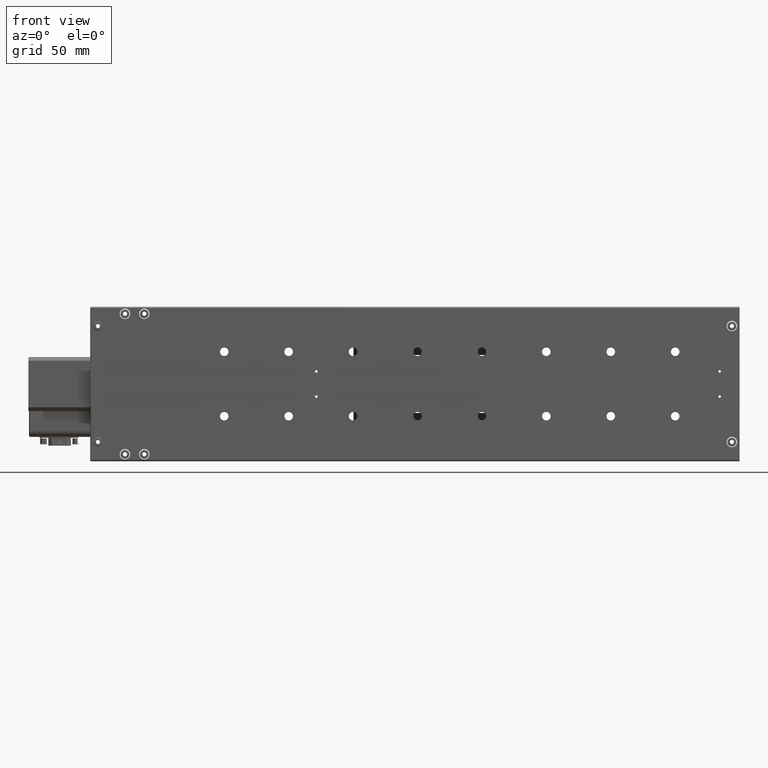
[diagram: clean part render]
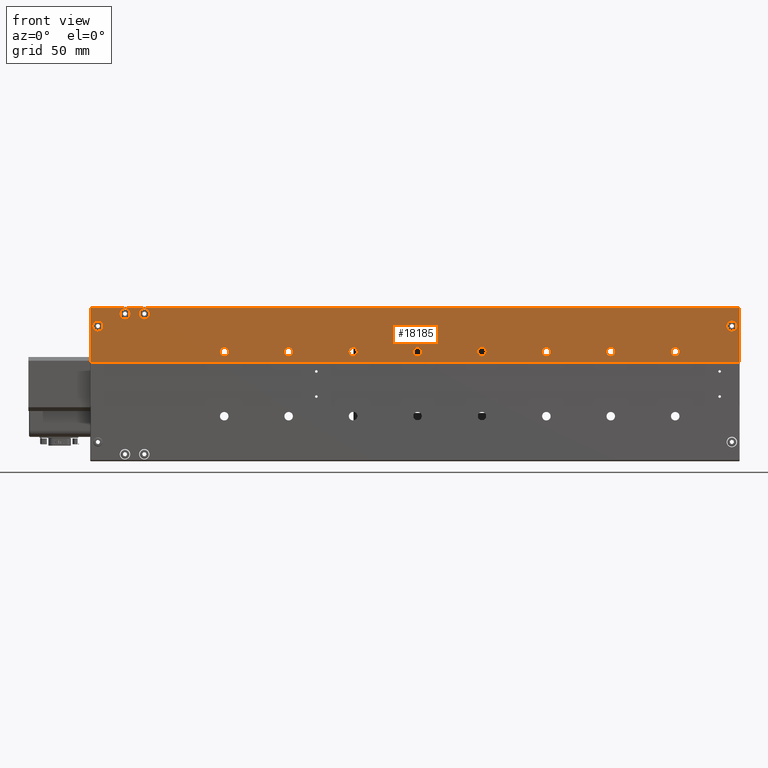
[diagram: same view with one face highlighted and labeled with its STEP entity id]
A machine part, front view. The second image highlights one B-rep face of the part: STEP entity #18185.
In plain terms, the highlighted planar face has unit normal (-0, 1, -0).
Its self-contained STEP definition (entity closure, byte-faithful):
#147 = AXIS2_PLACEMENT_3D ( 'NONE', #32974, #39916, #19554 ) ;
#389 = DIRECTION ( 'NONE',  ( -1.751623080406021300E-046, 1.000000000000000000, -1.224646799147353200E-016 ) ) ;
#541 = DIRECTION ( 'NONE',  ( -1.000000000000000000, -1.283953296258158300E-030, -1.682156097916905300E-014 ) ) ;
#644 = VERTEX_POINT ( 'NONE', #18623 ) ;
#680 = CARTESIAN_POINT ( 'NONE',  ( -26.91805639493426100, -1.734723475976811200E-015, 282.9914224104954900 ) ) ;
#935 = ORIENTED_EDGE ( 'NONE', *, *, #31258, .T. ) ;
#1015 = DIRECTION ( 'NONE',  ( -1.000000000000000000, -1.283953296258163800E-030, -1.682156097916912200E-014 ) ) ;
#1148 = ORIENTED_EDGE ( 'NONE', *, *, #7535, .T. ) ;
#1414 = EDGE_CURVE ( 'NONE', #25309, #15372, #10296, .T. ) ;
#1450 = DIRECTION ( 'NONE',  ( 1.000000000000000000, 1.274654131356476300E-030, 1.387778780781444400E-014 ) ) ;
#1548 = ORIENTED_EDGE ( 'NONE', *, *, #29086, .T. ) ;
#1903 = EDGE_CURVE ( 'NONE', #27687, #29954, #9814, .T. ) ;
#1985 = VERTEX_POINT ( 'NONE', #12479 ) ;
#2250 = DIRECTION ( 'NONE',  ( 1.040834085586084100E-014, -1.224646799147353200E-016, -1.000000000000000000 ) ) ;
#2649 = CARTESIAN_POINT ( 'NONE',  ( -375.6180563949345100, -1.734723475976814000E-015, 302.9914224104917400 ) ) ;
#2694 = CIRCLE ( 'NONE', #15061, 3.299999999999983400 ) ;
#2706 = CIRCLE ( 'NONE', #15436, 3.299999999999997200 ) ;
#2717 = CARTESIAN_POINT ( 'NONE',  ( -335.6180563949346300, 0.0000000000000000000, 312.4914224104921900 ) ) ;
#3256 = DIRECTION ( 'NONE',  ( 1.000000000000000000, 1.251854463851702300E-030, 1.387778780781444400E-014 ) ) ;
#3314 = FACE_BOUND ( 'NONE', #26994, .T. ) ;
#3502 = EDGE_LOOP ( 'NONE', ( #18482, #17681 ) ) ;
#4272 = AXIS2_PLACEMENT_3D ( 'NONE', #30868, #389, #541 ) ;
#4411 = CARTESIAN_POINT ( 'NONE',  ( 124.3819436050654200, -1.734723475976802200E-015, 302.9914224104970200 ) ) ;
#4429 = DIRECTION ( 'NONE',  ( 1.751623080406021300E-046, -1.000000000000000000, 1.224646799147353200E-016 ) ) ;
#4842 = AXIS2_PLACEMENT_3D ( 'NONE', #27214, #43859, #40288 ) ;
#4894 = FACE_BOUND ( 'NONE', #15428, .T. ) ;
#5319 = DIRECTION ( 'NONE',  ( -1.000000000000000000, -1.283953296258158300E-030, -1.682156097916905300E-014 ) ) ;
#5396 = DIRECTION ( 'NONE',  ( 1.000000000000000000, 1.274654131356476300E-030, 1.387778780781444400E-014 ) ) ;
#5621 = EDGE_LOOP ( 'NONE', ( #13675, #18938 ) ) ;
#5740 = CARTESIAN_POINT ( 'NONE',  ( -270.3180563949343300, -1.734723475976800400E-015, 282.9914224104929900 ) ) ;
#5847 = VERTEX_POINT ( 'NONE', #7627 ) ;
#6016 = ORIENTED_EDGE ( 'NONE', *, *, #22105, .F. ) ;
#6311 = ORIENTED_EDGE ( 'NONE', *, *, #14202, .T. ) ;
#6635 = EDGE_CURVE ( 'NONE', #27687, #40861, #31367, .T. ) ;
#6723 = AXIS2_PLACEMENT_3D ( 'NONE', #36448, #9503, #19616 ) ;
#6790 = AXIS2_PLACEMENT_3D ( 'NONE', #16353, #33883, #43968 ) ;
#6850 = ORIENTED_EDGE ( 'NONE', *, *, #30434, .F. ) ;
#6859 = DIRECTION ( 'NONE',  ( -1.751623080406021300E-046, 1.000000000000000000, -1.224646799147353200E-016 ) ) ;
#7305 = CARTESIAN_POINT ( 'NONE',  ( -273.6180563949342900, -1.734723475976807100E-015, 282.9914224104929300 ) ) ;
#7376 = CARTESIAN_POINT ( 'NONE',  ( -126.9180563949342500, -1.734723475976811200E-015, 282.9914224104944100 ) ) ;
#7425 = EDGE_CURVE ( 'NONE', #41999, #7772, #2706, .T. ) ;
#7535 = EDGE_CURVE ( 'NONE', #39178, #18533, #34995, .T. ) ;
#7627 = CARTESIAN_POINT ( 'NONE',  ( -276.9180563949343000, -1.734723475976811200E-015, 282.9914224104928700 ) ) ;
#7772 = VERTEX_POINT ( 'NONE', #17785 ) ;
#7839 = DIRECTION ( 'NONE',  ( -1.751623080406021300E-046, 1.000000000000000000, -1.224646799147353200E-016 ) ) ;
#7867 = DIRECTION ( 'NONE',  ( -1.000000000000000000, -1.274654131356476300E-030, -1.040834085586084100E-014 ) ) ;
#8153 = PLANE ( 'NONE',  #34807 ) ;
#8488 = ORIENTED_EDGE ( 'NONE', *, *, #1903, .T. ) ;
#8598 = DIRECTION ( 'NONE',  ( -1.751623080406021300E-046, 1.000000000000000000, -1.224646799147353200E-016 ) ) ;
#8725 = AXIS2_PLACEMENT_3D ( 'NONE', #27480, #40710, #3256 ) ;
#8937 = CARTESIAN_POINT ( 'NONE',  ( -377.1180563949346800, 0.0000000000000000000, 317.9914224104918500 ) ) ;
#9503 = DIRECTION ( 'NONE',  ( -1.751623080406021300E-046, 1.000000000000000000, -1.224646799147353200E-016 ) ) ;
#9597 = ORIENTED_EDGE ( 'NONE', *, *, #32944, .T. ) ;
#9668 = DIRECTION ( 'NONE',  ( -1.000000000000000000, -1.283953296258163800E-030, -1.682156097916912200E-014 ) ) ;
#9734 = CIRCLE ( 'NONE', #36054, 3.299999999999997200 ) ;
#9814 = LINE ( 'NONE', #36214, #42678 ) ;
#10296 = CIRCLE ( 'NONE', #15729, 3.299999999999997200 ) ;
#10313 = CIRCLE ( 'NONE', #36880, 3.299999999999997200 ) ;
#10714 = FACE_BOUND ( 'NONE', #43109, .T. ) ;
#10749 = VERTEX_POINT ( 'NONE', #28694 ) ;
#10868 = EDGE_LOOP ( 'NONE', ( #22596, #8488, #935, #14149 ) ) ;
#10920 = EDGE_CURVE ( 'NONE', #12768, #38551, #21985, .T. ) ;
#11000 = VERTEX_POINT ( 'NONE', #13439 ) ;
#11120 = CARTESIAN_POINT ( 'NONE',  ( 126.3819436050653900, 0.0000000000000000000, 317.9914224104970200 ) ) ;
#11196 = VERTEX_POINT ( 'NONE', #19522 ) ;
#11299 = ORIENTED_EDGE ( 'NONE', *, *, #7425, .T. ) ;
#11836 = ORIENTED_EDGE ( 'NONE', *, *, #31040, .T. ) ;
#12170 = CARTESIAN_POINT ( 'NONE',  ( -371.6180563949345100, -1.734723475976807100E-015, 302.9914224104917900 ) ) ;
#12449 = CARTESIAN_POINT ( 'NONE',  ( -23.61805639493426400, -1.734723475976807100E-015, 282.9914224104955500 ) ) ;
#12479 = CARTESIAN_POINT ( 'NONE',  ( -339.6180563949346300, -6.798155367234455500E-030, 312.4914224104921300 ) ) ;
#12516 = EDGE_CURVE ( 'NONE', #41302, #11000, #9734, .T. ) ;
#12627 = DIRECTION ( 'NONE',  ( 1.751623080406021300E-046, -1.000000000000000000, 1.224646799147353200E-016 ) ) ;
#12768 = VERTEX_POINT ( 'NONE', #4411 ) ;
#13115 = VERTEX_POINT ( 'NONE', #28237 ) ;
#13439 = CARTESIAN_POINT ( 'NONE',  ( -226.9180563949343000, -1.734723475976811200E-015, 282.9914224104933300 ) ) ;
#13528 = CARTESIAN_POINT ( 'NONE',  ( -377.6180563949342300, -5.204170427930421300E-015, 274.9914224104917900 ) ) ;
#13631 = CARTESIAN_POINT ( 'NONE',  ( -273.6180563949342900, -1.734723475976807100E-015, 282.9914224104929300 ) ) ;
#13675 = ORIENTED_EDGE ( 'NONE', *, *, #10920, .F. ) ;
#13874 = FACE_BOUND ( 'NONE', #26080, .T. ) ;
#13889 = VERTEX_POINT ( 'NONE', #42220 ) ;
#14094 = DIRECTION ( 'NONE',  ( -1.000000000000000000, -1.283953296258169000E-030, -1.682156097916919500E-014 ) ) ;
#14149 = ORIENTED_EDGE ( 'NONE', *, *, #17647, .T. ) ;
#14202 = EDGE_CURVE ( 'NONE', #27635, #13115, #2694, .T. ) ;
#14923 = DIRECTION ( 'NONE',  ( -1.000000000000000000, -1.283953296258158300E-030, -1.682156097916905300E-014 ) ) ;
#15061 = AXIS2_PLACEMENT_3D ( 'NONE', #41895, #7839, #1015 ) ;
#15372 = VERTEX_POINT ( 'NONE', #16175 ) ;
#15428 = EDGE_LOOP ( 'NONE', ( #6311, #19735 ) ) ;
#15436 = AXIS2_PLACEMENT_3D ( 'NONE', #28950, #25666, #18984 ) ;
#15729 = AXIS2_PLACEMENT_3D ( 'NONE', #42950, #33280, #42800 ) ;
#15885 = AXIS2_PLACEMENT_3D ( 'NONE', #26630, #30038, #9668 ) ;
#16056 = AXIS2_PLACEMENT_3D ( 'NONE', #32917, #12627, #36332 ) ;
#16175 = CARTESIAN_POINT ( 'NONE',  ( -176.9180563949342700, -1.734723475976811200E-015, 282.9914224104939000 ) ) ;
#16318 = ORIENTED_EDGE ( 'NONE', *, *, #32570, .T. ) ;
#16353 = CARTESIAN_POINT ( 'NONE',  ( 120.3819436050654000, -1.734723475976807100E-015, 302.9914224104969700 ) ) ;
#16392 = CARTESIAN_POINT ( 'NONE',  ( -170.3180563949342700, -1.734723475976800400E-015, 282.9914224104940100 ) ) ;
#16431 = AXIS2_PLACEMENT_3D ( 'NONE', #13631, #6859, #34073 ) ;
#16713 = CARTESIAN_POINT ( 'NONE',  ( 23.08194360506576700, -1.734723475976811200E-015, 282.9914224104959400 ) ) ;
#17042 = CIRCLE ( 'NONE', #36619, 4.000000000000003600 ) ;
#17124 = CIRCLE ( 'NONE', #25741, 3.299999999999997200 ) ;
#17428 = AXIS2_PLACEMENT_3D ( 'NONE', #39204, #28489, #5319 ) ;
#17591 = EDGE_CURVE ( 'NONE', #25886, #23634, #26618, .T. ) ;
#17647 = EDGE_CURVE ( 'NONE', #10749, #40861, #21812, .T. ) ;
#17681 = ORIENTED_EDGE ( 'NONE', *, *, #25000, .F. ) ;
#17785 = CARTESIAN_POINT ( 'NONE',  ( 29.68194360506576500, -1.734723475976800400E-015, 282.9914224104960600 ) ) ;
#17993 = CIRCLE ( 'NONE', #27347, 3.299999999999997200 ) ;
#18185 = ADVANCED_FACE ( 'NONE', ( #19619, #37734, #10714, #36648, #13874, #34017, #27602, #4894, #3314, #24968, #39843, #38793, #21263 ), #8153, .F. ) ;
#18482 = ORIENTED_EDGE ( 'NONE', *, *, #40076, .F. ) ;
#18533 = VERTEX_POINT ( 'NONE', #680 ) ;
#18623 = CARTESIAN_POINT ( 'NONE',  ( 79.68194360506575400, -1.734723475976800400E-015, 282.9914224104966300 ) ) ;
#18683 = CIRCLE ( 'NONE', #41164, 4.000000000000003600 ) ;
#18731 = DIRECTION ( 'NONE',  ( -1.000000000000000000, -1.283953296258158300E-030, -1.682156097916905300E-014 ) ) ;
#18938 = ORIENTED_EDGE ( 'NONE', *, *, #33715, .F. ) ;
#18984 = DIRECTION ( 'NONE',  ( -1.000000000000000000, -1.283953296258158300E-030, -1.682156097916905300E-014 ) ) ;
#19163 = VECTOR ( 'NONE', #2250, 1000.000000000000000 ) ;
#19181 = DIRECTION ( 'NONE',  ( -1.751623080406021300E-046, 1.000000000000000000, -1.224646799147353200E-016 ) ) ;
#19214 = VERTEX_POINT ( 'NONE', #2649 ) ;
#19273 = DIRECTION ( 'NONE',  ( 1.751623080406021300E-046, -1.000000000000000000, 1.224646799147353200E-016 ) ) ;
#19442 = ORIENTED_EDGE ( 'NONE', *, *, #39631, .T. ) ;
#19461 = CARTESIAN_POINT ( 'NONE',  ( -367.6180563949345100, -1.734723475976802200E-015, 302.9914224104918500 ) ) ;
#19522 = CARTESIAN_POINT ( 'NONE',  ( -70.31805639493427400, -1.734723475976800400E-015, 282.9914224104950300 ) ) ;
#19554 = DIRECTION ( 'NONE',  ( -1.000000000000000000, -1.283953296258158300E-030, -1.682156097916905300E-014 ) ) ;
#19616 = DIRECTION ( 'NONE',  ( -1.000000000000000000, -1.283953296258158300E-030, -1.682156097916905300E-014 ) ) ;
#19619 = FACE_BOUND ( 'NONE', #3502, .T. ) ;
#19722 = DIRECTION ( 'NONE',  ( -1.000000000000000000, -1.283953296258158300E-030, -1.682156097916905300E-014 ) ) ;
#19735 = ORIENTED_EDGE ( 'NONE', *, *, #35213, .T. ) ;
#20272 = DIRECTION ( 'NONE',  ( -1.040834085586084100E-014, 1.224646799147353200E-016, 1.000000000000000000 ) ) ;
#20484 = CARTESIAN_POINT ( 'NONE',  ( -354.6180563949346300, -6.798155367234455500E-030, 312.4914224104919600 ) ) ;
#20635 = CARTESIAN_POINT ( 'NONE',  ( -76.91805639493426800, -1.734723475976811200E-015, 282.9914224104949200 ) ) ;
#20953 = LINE ( 'NONE', #26231, #35863 ) ;
#21263 = FACE_BOUND ( 'NONE', #5621, .T. ) ;
#21389 = CIRCLE ( 'NONE', #4272, 3.299999999999997200 ) ;
#21460 = CIRCLE ( 'NONE', #43367, 3.299999999999969600 ) ;
#21591 = EDGE_LOOP ( 'NONE', ( #40049, #19442 ) ) ;
#21653 = EDGE_CURVE ( 'NONE', #25680, #1985, #28953, .T. ) ;
#21812 = LINE ( 'NONE', #8937, #19163 ) ;
#21985 = CIRCLE ( 'NONE', #6790, 4.000000000000003600 ) ;
#22105 = EDGE_CURVE ( 'NONE', #23634, #25886, #31076, .T. ) ;
#22286 = CARTESIAN_POINT ( 'NONE',  ( 26.38194360506576800, -1.734723475976807100E-015, 282.9914224104960000 ) ) ;
#22454 = DIRECTION ( 'NONE',  ( -1.751623080406021300E-046, 1.000000000000000000, -1.224646799147353200E-016 ) ) ;
#22596 = ORIENTED_EDGE ( 'NONE', *, *, #6635, .F. ) ;
#22685 = DIRECTION ( 'NONE',  ( 1.000000000000000000, 1.251854463851702300E-030, 1.387778780781444400E-014 ) ) ;
#23000 = VERTEX_POINT ( 'NONE', #19461 ) ;
#23333 = VERTEX_POINT ( 'NONE', #5740 ) ;
#23634 = VERTEX_POINT ( 'NONE', #27509 ) ;
#23644 = CIRCLE ( 'NONE', #16431, 3.299999999999969600 ) ;
#24334 = CARTESIAN_POINT ( 'NONE',  ( 125.8819436050657100, -5.204170427930421300E-015, 274.9914224104970800 ) ) ;
#24343 = ORIENTED_EDGE ( 'NONE', *, *, #33081, .T. ) ;
#24869 = EDGE_CURVE ( 'NONE', #13889, #644, #34190, .T. ) ;
#24968 = FACE_BOUND ( 'NONE', #36643, .T. ) ;
#25000 = EDGE_CURVE ( 'NONE', #19214, #23000, #18683, .T. ) ;
#25309 = VERTEX_POINT ( 'NONE', #16392 ) ;
#25666 = DIRECTION ( 'NONE',  ( -1.751623080406021300E-046, 1.000000000000000000, -1.224646799147353200E-016 ) ) ;
#25680 = VERTEX_POINT ( 'NONE', #28474 ) ;
#25728 = DIRECTION ( 'NONE',  ( 1.000000000000000000, 1.251854463851702300E-030, 1.387778780781444400E-014 ) ) ;
#25741 = AXIS2_PLACEMENT_3D ( 'NONE', #22286, #8598, #18731 ) ;
#25886 = VERTEX_POINT ( 'NONE', #20484 ) ;
#26080 = EDGE_LOOP ( 'NONE', ( #27554, #29606 ) ) ;
#26231 = CARTESIAN_POINT ( 'NONE',  ( 126.3819436050653900, 0.0000000000000000000, 316.9914224104969700 ) ) ;
#26453 = CARTESIAN_POINT ( 'NONE',  ( -20.31805639493426700, -1.734723475976800400E-015, 282.9914224104956000 ) ) ;
#26618 = CIRCLE ( 'NONE', #34220, 4.000000000000003600 ) ;
#26630 = CARTESIAN_POINT ( 'NONE',  ( -123.6180563949342700, -1.734723475976807100E-015, 282.9914224104944700 ) ) ;
#26994 = EDGE_LOOP ( 'NONE', ( #42991, #9597 ) ) ;
#27214 = CARTESIAN_POINT ( 'NONE',  ( 76.38194360506575700, -1.734723475976807100E-015, 282.9914224104965700 ) ) ;
#27347 = AXIS2_PLACEMENT_3D ( 'NONE', #40087, #29830, #19722 ) ;
#27402 = DIRECTION ( 'NONE',  ( -1.000000000000000000, -1.274654131356476300E-030, -1.040834085586084100E-014 ) ) ;
#27480 = CARTESIAN_POINT ( 'NONE',  ( -371.6180563949345100, -1.734723475976807100E-015, 302.9914224104917900 ) ) ;
#27509 = CARTESIAN_POINT ( 'NONE',  ( -346.6180563949345700, 5.098616525425909200E-030, 312.4914224104920800 ) ) ;
#27554 = ORIENTED_EDGE ( 'NONE', *, *, #35234, .T. ) ;
#27602 = FACE_BOUND ( 'NONE', #37371, .T. ) ;
#27635 = VERTEX_POINT ( 'NONE', #7376 ) ;
#27687 = VERTEX_POINT ( 'NONE', #24334 ) ;
#27688 = AXIS2_PLACEMENT_3D ( 'NONE', #2717, #32792, #33355 ) ;
#28237 = CARTESIAN_POINT ( 'NONE',  ( -120.3180563949342700, -1.734723475976800400E-015, 282.9914224104945200 ) ) ;
#28474 = CARTESIAN_POINT ( 'NONE',  ( -331.6180563949346300, 5.098616525425909200E-030, 312.4914224104922500 ) ) ;
#28489 = DIRECTION ( 'NONE',  ( -1.751623080406021300E-046, 1.000000000000000000, -1.224646799147353200E-016 ) ) ;
#28694 = CARTESIAN_POINT ( 'NONE',  ( -377.1180563949346800, 0.0000000000000000000, 316.9914224104917900 ) ) ;
#28925 = CIRCLE ( 'NONE', #41964, 3.299999999999997200 ) ;
#28950 = CARTESIAN_POINT ( 'NONE',  ( 26.38194360506576800, -1.734723475976807100E-015, 282.9914224104960000 ) ) ;
#28953 = CIRCLE ( 'NONE', #42802, 4.000000000000003600 ) ;
#29010 = DIRECTION ( 'NONE',  ( 1.751623080406021300E-046, -1.000000000000000000, 1.224646799147353200E-016 ) ) ;
#29086 = EDGE_CURVE ( 'NONE', #11000, #41302, #40826, .T. ) ;
#29160 = DIRECTION ( 'NONE',  ( -1.000000000000000000, -1.283953296258158300E-030, -1.682156097916905300E-014 ) ) ;
#29606 = ORIENTED_EDGE ( 'NONE', *, *, #31571, .T. ) ;
#29830 = DIRECTION ( 'NONE',  ( -1.751623080406021300E-046, 1.000000000000000000, -1.224646799147353200E-016 ) ) ;
#29954 = VERTEX_POINT ( 'NONE', #38922 ) ;
#29972 = ORIENTED_EDGE ( 'NONE', *, *, #12516, .T. ) ;
#30038 = DIRECTION ( 'NONE',  ( -1.751623080406021300E-046, 1.000000000000000000, -1.224646799147353200E-016 ) ) ;
#30367 = DIRECTION ( 'NONE',  ( -1.000000000000000000, -1.276340181794778500E-030, -1.042210850249557800E-014 ) ) ;
#30434 = EDGE_CURVE ( 'NONE', #1985, #25680, #33257, .T. ) ;
#30868 = CARTESIAN_POINT ( 'NONE',  ( -73.61805639493427100, -1.734723475976807100E-015, 282.9914224104949800 ) ) ;
#31040 = EDGE_CURVE ( 'NONE', #15372, #25309, #28925, .T. ) ;
#31076 = CIRCLE ( 'NONE', #16056, 4.000000000000003600 ) ;
#31258 = EDGE_CURVE ( 'NONE', #29954, #10749, #20953, .T. ) ;
#31367 = LINE ( 'NONE', #13528, #36678 ) ;
#31571 = EDGE_CURVE ( 'NONE', #23333, #5847, #21460, .T. ) ;
#31823 = DIRECTION ( 'NONE',  ( -1.611493233973539600E-044, 1.000000000000000000, -1.224646799147353200E-016 ) ) ;
#32201 = CARTESIAN_POINT ( 'NONE',  ( -377.1180563949342300, -5.204170427930421300E-015, 274.9914224104918500 ) ) ;
#32393 = CARTESIAN_POINT ( 'NONE',  ( 120.3819436050654000, -1.734723475976807100E-015, 302.9914224104969700 ) ) ;
#32570 = EDGE_CURVE ( 'NONE', #7772, #41999, #17124, .T. ) ;
#32792 = DIRECTION ( 'NONE',  ( 1.751623080406021300E-046, -1.000000000000000000, 1.224646799147353200E-016 ) ) ;
#32884 = DIRECTION ( 'NONE',  ( -1.000000000000000000, -1.283953296258158300E-030, -1.682156097916905300E-014 ) ) ;
#32893 = VERTEX_POINT ( 'NONE', #20635 ) ;
#32917 = CARTESIAN_POINT ( 'NONE',  ( -350.6180563949345700, 0.0000000000000000000, 312.4914224104920200 ) ) ;
#32944 = EDGE_CURVE ( 'NONE', #11196, #32893, #21389, .T. ) ;
#32974 = CARTESIAN_POINT ( 'NONE',  ( -23.61805639493426400, -1.734723475976807100E-015, 282.9914224104955500 ) ) ;
#33081 = EDGE_CURVE ( 'NONE', #18533, #39178, #10313, .T. ) ;
#33257 = CIRCLE ( 'NONE', #27688, 4.000000000000003600 ) ;
#33280 = DIRECTION ( 'NONE',  ( -1.751623080406021300E-046, 1.000000000000000000, -1.224646799147353200E-016 ) ) ;
#33355 = DIRECTION ( 'NONE',  ( 1.000000000000000000, 1.274654131356476300E-030, 1.387778780781444400E-014 ) ) ;
#33715 = EDGE_CURVE ( 'NONE', #38551, #12768, #17042, .T. ) ;
#33742 = ORIENTED_EDGE ( 'NONE', *, *, #21653, .F. ) ;
#33883 = DIRECTION ( 'NONE',  ( 1.751623080406021300E-046, -1.000000000000000000, 1.224646799147353200E-016 ) ) ;
#34017 = FACE_BOUND ( 'NONE', #42813, .T. ) ;
#34073 = DIRECTION ( 'NONE',  ( -1.000000000000000000, -1.283953296258169000E-030, -1.682156097916919500E-014 ) ) ;
#34190 = CIRCLE ( 'NONE', #4842, 3.299999999999997200 ) ;
#34220 = AXIS2_PLACEMENT_3D ( 'NONE', #42696, #36455, #5396 ) ;
#34437 = CIRCLE ( 'NONE', #8725, 4.000000000000003600 ) ;
#34521 = DIRECTION ( 'NONE',  ( -1.751623080406021300E-046, 1.000000000000000000, -1.224646799147353200E-016 ) ) ;
#34807 = AXIS2_PLACEMENT_3D ( 'NONE', #11120, #31823, #7867 ) ;
#34995 = CIRCLE ( 'NONE', #147, 3.299999999999997200 ) ;
#35213 = EDGE_CURVE ( 'NONE', #13115, #27635, #35345, .T. ) ;
#35231 = CARTESIAN_POINT ( 'NONE',  ( -223.6180563949342900, -1.734723475976807100E-015, 282.9914224104933900 ) ) ;
#35234 = EDGE_CURVE ( 'NONE', #5847, #23333, #23644, .T. ) ;
#35345 = CIRCLE ( 'NONE', #15885, 3.299999999999983400 ) ;
#35863 = VECTOR ( 'NONE', #30367, 1000.000000000000000 ) ;
#36014 = CARTESIAN_POINT ( 'NONE',  ( -173.6180563949342900, -1.734723475976807100E-015, 282.9914224104939500 ) ) ;
#36054 = AXIS2_PLACEMENT_3D ( 'NONE', #35231, #41773, #14923 ) ;
#36214 = CARTESIAN_POINT ( 'NONE',  ( 125.8819436050652700, 0.0000000000000000000, 317.9914224104970200 ) ) ;
#36330 = EDGE_LOOP ( 'NONE', ( #33742, #6850 ) ) ;
#36332 = DIRECTION ( 'NONE',  ( 1.000000000000000000, 1.274654131356476300E-030, 1.387778780781444400E-014 ) ) ;
#36448 = CARTESIAN_POINT ( 'NONE',  ( -73.61805639493427100, -1.734723475976807100E-015, 282.9914224104949800 ) ) ;
#36455 = DIRECTION ( 'NONE',  ( 1.751623080406021300E-046, -1.000000000000000000, 1.224646799147353200E-016 ) ) ;
#36619 = AXIS2_PLACEMENT_3D ( 'NONE', #32393, #19273, #22685 ) ;
#36643 = EDGE_LOOP ( 'NONE', ( #24343, #1148 ) ) ;
#36648 = FACE_BOUND ( 'NONE', #36330, .T. ) ;
#36678 = VECTOR ( 'NONE', #27402, 1000.000000000000000 ) ;
#36880 = AXIS2_PLACEMENT_3D ( 'NONE', #12449, #22454, #29160 ) ;
#37164 = EDGE_LOOP ( 'NONE', ( #11299, #16318 ) ) ;
#37371 = EDGE_LOOP ( 'NONE', ( #11836, #38801 ) ) ;
#37734 = FACE_OUTER_BOUND ( 'NONE', #10868, .T. ) ;
#38350 = CARTESIAN_POINT ( 'NONE',  ( 116.3819436050654000, -1.734723475976814000E-015, 302.9914224104969100 ) ) ;
#38380 = CARTESIAN_POINT ( 'NONE',  ( -220.3180563949343000, -1.734723475976800400E-015, 282.9914224104934400 ) ) ;
#38551 = VERTEX_POINT ( 'NONE', #38350 ) ;
#38793 = FACE_BOUND ( 'NONE', #21591, .T. ) ;
#38801 = ORIENTED_EDGE ( 'NONE', *, *, #1414, .T. ) ;
#38922 = CARTESIAN_POINT ( 'NONE',  ( 125.8819436050652700, 0.0000000000000000000, 316.9914224104969700 ) ) ;
#39178 = VERTEX_POINT ( 'NONE', #26453 ) ;
#39204 = CARTESIAN_POINT ( 'NONE',  ( -223.6180563949342900, -1.734723475976807100E-015, 282.9914224104933900 ) ) ;
#39252 = EDGE_CURVE ( 'NONE', #32893, #11196, #39313, .T. ) ;
#39313 = CIRCLE ( 'NONE', #6723, 3.299999999999997200 ) ;
#39631 = EDGE_CURVE ( 'NONE', #644, #13889, #17993, .T. ) ;
#39843 = FACE_BOUND ( 'NONE', #37164, .T. ) ;
#39916 = DIRECTION ( 'NONE',  ( -1.751623080406021300E-046, 1.000000000000000000, -1.224646799147353200E-016 ) ) ;
#40049 = ORIENTED_EDGE ( 'NONE', *, *, #24869, .T. ) ;
#40076 = EDGE_CURVE ( 'NONE', #23000, #19214, #34437, .T. ) ;
#40087 = CARTESIAN_POINT ( 'NONE',  ( 76.38194360506575700, -1.734723475976807100E-015, 282.9914224104965700 ) ) ;
#40288 = DIRECTION ( 'NONE',  ( -1.000000000000000000, -1.283953296258158300E-030, -1.682156097916905300E-014 ) ) ;
#40710 = DIRECTION ( 'NONE',  ( 1.751623080406021300E-046, -1.000000000000000000, 1.224646799147353200E-016 ) ) ;
#40826 = CIRCLE ( 'NONE', #17428, 3.299999999999997200 ) ;
#40861 = VERTEX_POINT ( 'NONE', #32201 ) ;
#41164 = AXIS2_PLACEMENT_3D ( 'NONE', #12170, #29010, #25728 ) ;
#41302 = VERTEX_POINT ( 'NONE', #38380 ) ;
#41773 = DIRECTION ( 'NONE',  ( -1.751623080406021300E-046, 1.000000000000000000, -1.224646799147353200E-016 ) ) ;
#41895 = CARTESIAN_POINT ( 'NONE',  ( -123.6180563949342700, -1.734723475976807100E-015, 282.9914224104944700 ) ) ;
#41964 = AXIS2_PLACEMENT_3D ( 'NONE', #36014, #19181, #32884 ) ;
#41999 = VERTEX_POINT ( 'NONE', #16713 ) ;
#42045 = CARTESIAN_POINT ( 'NONE',  ( -335.6180563949346300, 0.0000000000000000000, 312.4914224104921900 ) ) ;
#42220 = CARTESIAN_POINT ( 'NONE',  ( 73.08194360506576000, -1.734723475976811200E-015, 282.9914224104965100 ) ) ;
#42678 = VECTOR ( 'NONE', #20272, 1000.000000000000000 ) ;
#42696 = CARTESIAN_POINT ( 'NONE',  ( -350.6180563949345700, 0.0000000000000000000, 312.4914224104920200 ) ) ;
#42800 = DIRECTION ( 'NONE',  ( -1.000000000000000000, -1.283953296258158300E-030, -1.682156097916905300E-014 ) ) ;
#42802 = AXIS2_PLACEMENT_3D ( 'NONE', #42045, #4429, #1450 ) ;
#42813 = EDGE_LOOP ( 'NONE', ( #1548, #29972 ) ) ;
#42948 = ORIENTED_EDGE ( 'NONE', *, *, #17591, .F. ) ;
#42950 = CARTESIAN_POINT ( 'NONE',  ( -173.6180563949342900, -1.734723475976807100E-015, 282.9914224104939500 ) ) ;
#42991 = ORIENTED_EDGE ( 'NONE', *, *, #39252, .T. ) ;
#43109 = EDGE_LOOP ( 'NONE', ( #6016, #42948 ) ) ;
#43367 = AXIS2_PLACEMENT_3D ( 'NONE', #7305, #34521, #14094 ) ;
#43859 = DIRECTION ( 'NONE',  ( -1.751623080406021300E-046, 1.000000000000000000, -1.224646799147353200E-016 ) ) ;
#43968 = DIRECTION ( 'NONE',  ( 1.000000000000000000, 1.251854463851702300E-030, 1.387778780781444400E-014 ) ) ;